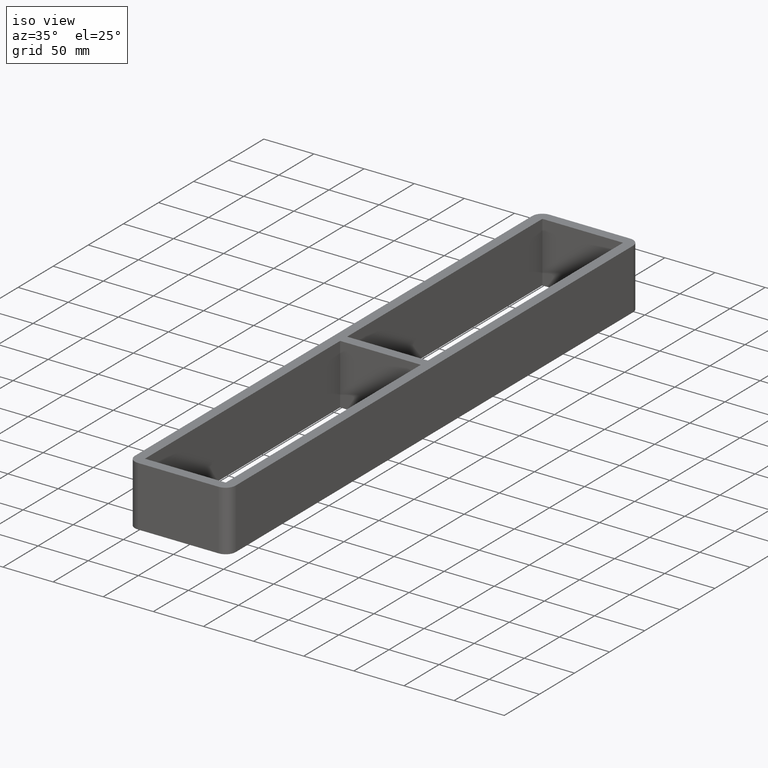
[diagram: clean part render]
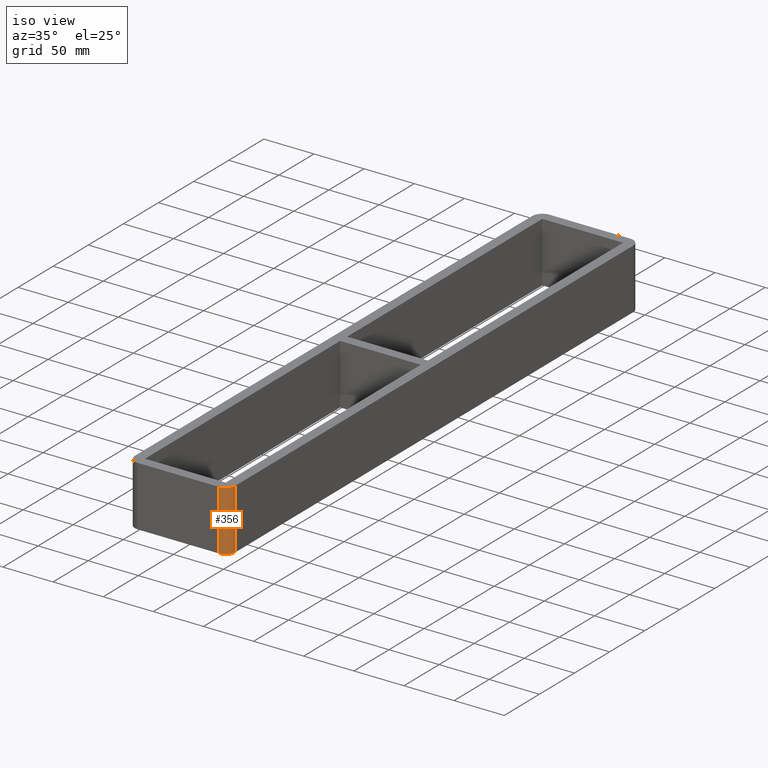
[diagram: same view with one face highlighted and labeled with its STEP entity id]
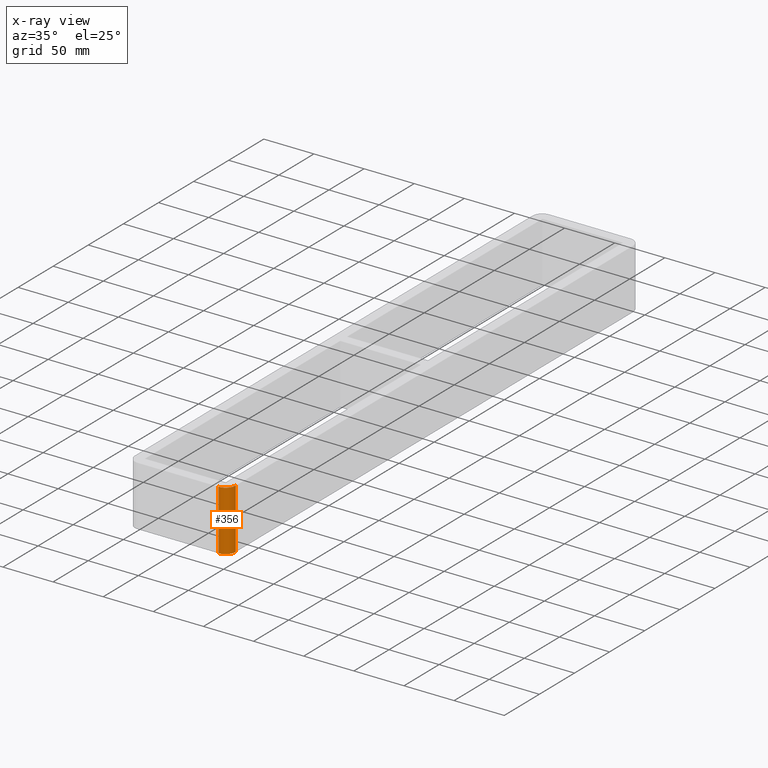
[diagram: x-ray of the same camera — body ghosted, the highlighted face saturated]
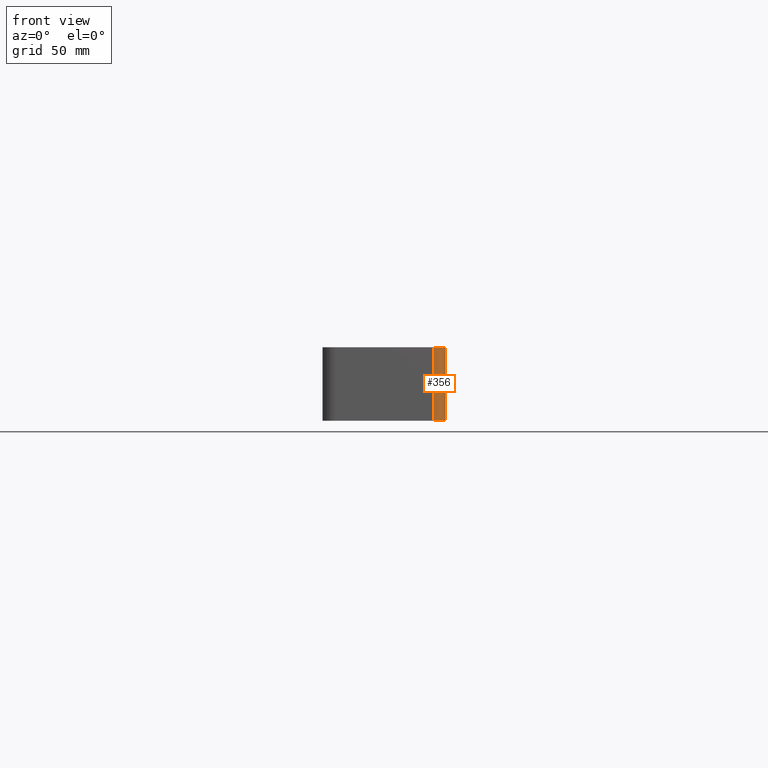
[diagram: same view with one face highlighted and labeled with its STEP entity id]
A machine part, iso view. The second image highlights one B-rep face of the part: STEP entity #356.
The next image is the same camera in x-ray: the body ghosted, the highlighted face saturated — about 0% of this face is hidden behind the body in this view.
A second angle (front view) of the same face is appended — the face is thin or edge-on in the first view.
In plain terms, the highlighted cylindrical surface (edge-blend (fillet) strip) has radius 10 mm, axis along (0, 0, -1).
Its self-contained STEP definition (entity closure, byte-faithful):
#21=CIRCLE('',#392,10.);
#26=CIRCLE('',#402,10.);
#30=CYLINDRICAL_SURFACE('',#401,10.);
#46=FACE_OUTER_BOUND('',#66,.T.);
#66=EDGE_LOOP('',(#303,#304,#305,#306));
#107=LINE('',#589,#147);
#109=LINE('',#593,#149);
#147=VECTOR('',#487,10.);
#149=VECTOR('',#491,10.);
#173=VERTEX_POINT('',#564);
#174=VERTEX_POINT('',#566);
#181=VERTEX_POINT('',#588);
#182=VERTEX_POINT('',#592);
#215=EDGE_CURVE('',#174,#173,#21,.T.);
#226=EDGE_CURVE('',#181,#174,#107,.T.);
#228=EDGE_CURVE('',#173,#182,#109,.T.);
#229=EDGE_CURVE('',#182,#181,#26,.T.);
#303=ORIENTED_EDGE('',*,*,#215,.T.);
#304=ORIENTED_EDGE('',*,*,#228,.T.);
#305=ORIENTED_EDGE('',*,*,#229,.T.);
#306=ORIENTED_EDGE('',*,*,#226,.T.);
#356=ADVANCED_FACE('',(#46),#30,.T.);
#392=AXIS2_PLACEMENT_3D('',#567,#463,#464);
#401=AXIS2_PLACEMENT_3D('',#591,#489,#490);
#402=AXIS2_PLACEMENT_3D('',#594,#492,#493);
#463=DIRECTION('center_axis',(0.,0.,1.));
#464=DIRECTION('ref_axis',(0.707106781186547,-0.707106781186547,0.));
#487=DIRECTION('',(0.,0.,-1.));
#489=DIRECTION('center_axis',(0.,0.,-1.));
#490=DIRECTION('ref_axis',(0.707106781186547,-0.707106781186547,0.));
#491=DIRECTION('',(0.,0.,1.));
#492=DIRECTION('center_axis',(0.,0.,-1.));
#493=DIRECTION('ref_axis',(0.707106781186547,-0.707106781186547,0.));
#564=CARTESIAN_POINT('',(50.2499999999998,-283.000000000001,-60.));
#566=CARTESIAN_POINT('',(40.2499999999998,-293.000000000001,-60.));
#567=CARTESIAN_POINT('Origin',(40.2499999999998,-283.000000000001,-60.));
#588=CARTESIAN_POINT('',(40.2499999999998,-293.000000000001,0.));
#589=CARTESIAN_POINT('',(40.2499999999998,-293.000000000001,0.));
#591=CARTESIAN_POINT('Origin',(40.2499999999998,-283.000000000001,0.));
#592=CARTESIAN_POINT('',(50.2499999999998,-283.000000000001,0.));
#593=CARTESIAN_POINT('',(50.2499999999998,-283.000000000001,0.));
#594=CARTESIAN_POINT('Origin',(40.2499999999998,-283.000000000001,0.));